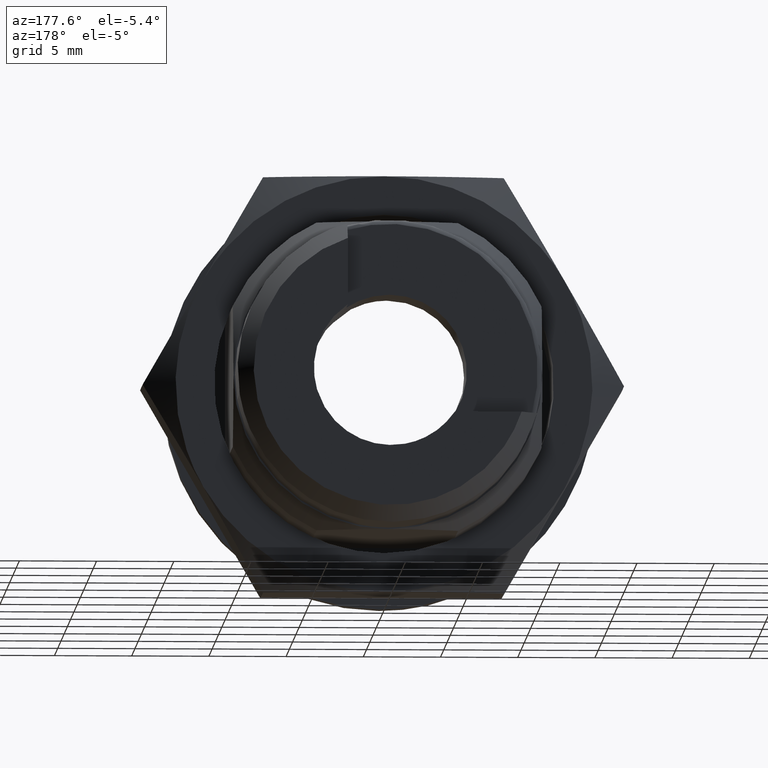
[diagram: clean part render]
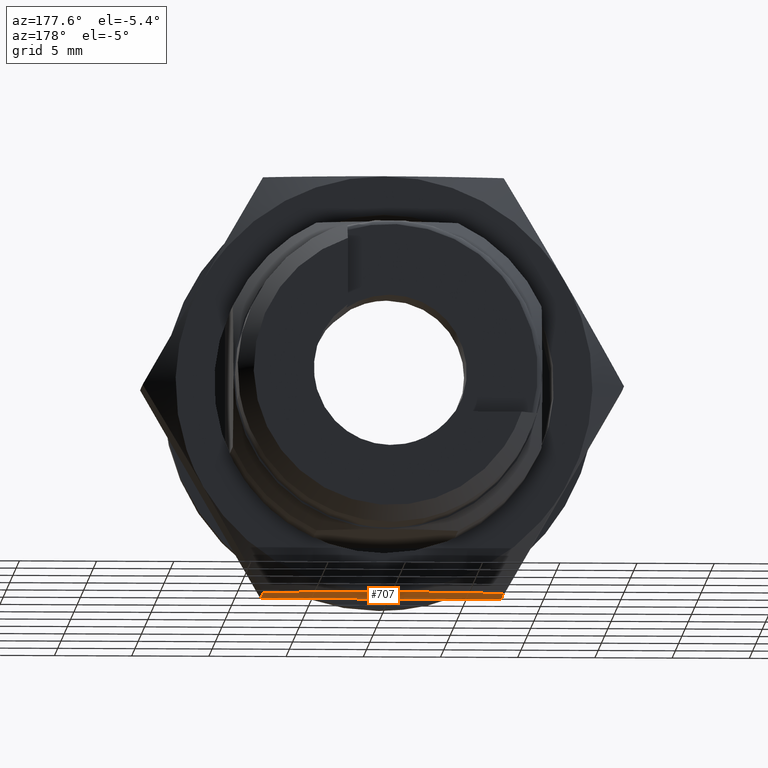
[diagram: same view with one face highlighted and labeled with its STEP entity id]
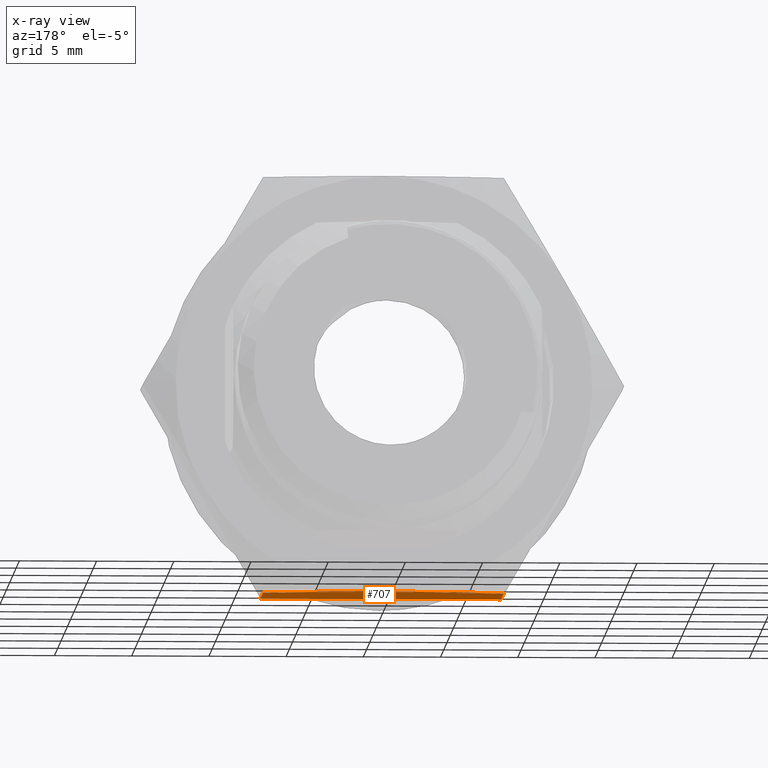
[diagram: x-ray of the same camera — body ghosted, the highlighted face saturated]
A machine part, auxiliary view. The second image highlights one B-rep face of the part: STEP entity #707.
The next image is the same camera in x-ray: the body ghosted, the highlighted face saturated — about 0% of this face is hidden behind the body in this view.
In plain terms, the highlighted face is a freeform B-spline surface patch.
Its self-contained STEP definition (entity closure, byte-faithful):
#364=CARTESIAN_POINT('',(7.000000332482160,0.0,-13.500000641215440));
#365=VERTEX_POINT('',#364);
#379=CARTESIAN_POINT('',(6.000000284984660,-7.794229004265340,-13.500000641216220));
#380=VERTEX_POINT('',#379);
#394=CARTESIAN_POINT('',(7.000000332482160,0.0,-13.500000641215440));
#395=CARTESIAN_POINT('',(7.000000332389047,-0.000583297459823,-13.500000641215600));
#396=CARTESIAN_POINT('',(7.000000314380705,-0.001166594500195,-13.500000641215600));
#397=CARTESIAN_POINT('',(6.999959780945603,-0.654239656948959,-13.500000641215600));
#398=CARTESIAN_POINT('',(6.977154559102181,-1.306198639828669,-13.500000641215600));
#399=CARTESIAN_POINT('',(6.887625316711893,-2.609092593654626,-13.500000641215600));
#400=CARTESIAN_POINT('',(6.820928549973395,-3.260028200051427,-13.500000641215600));
#401=CARTESIAN_POINT('',(6.647614333566984,-4.560968621090276,-13.500000641215600));
#402=CARTESIAN_POINT('',(6.541005635129090,-5.211118558278104,-13.500000641215600));
#403=CARTESIAN_POINT('',(6.293338654547926,-6.510028771840510,-13.500000641215610));
#404=CARTESIAN_POINT('',(6.153221032773357,-7.154239035574240,-13.500000641215600));
#405=CARTESIAN_POINT('',(6.000000284984660,-7.794229004265340,-13.500000641216220));
#406=B_SPLINE_CURVE_WITH_KNOTS('',3,(#394,#395,#396,#397,#398,#399,#400,#401,#402,#403,#404,#405),.UNSPECIFIED.,.F.,.U.,(4,2,2,2,2,4),(0.0,0.000111744399433,0.125111744399433,0.250111744399433,0.375111744399432,0.500111744399432),.UNSPECIFIED.);
#407=EDGE_CURVE('',#365,#380,#406,.T.);
#441=CARTESIAN_POINT('',(6.000000284984660,7.794229004266430,-13.500000641215600));
#442=VERTEX_POINT('',#441);
#443=CARTESIAN_POINT('',(6.000000284984666,7.794229004266431,-13.500000641215600));
#444=CARTESIAN_POINT('',(6.152127191571151,7.158807916792094,-13.500000641215600));
#445=CARTESIAN_POINT('',(6.291433974877149,6.518837123705652,-13.500000641215600));
#446=CARTESIAN_POINT('',(6.476427827160421,5.550375578051428,-13.500000641215610));
#447=CARTESIAN_POINT('',(6.534090343068354,5.226134765746765,-13.500000641215600));
#448=CARTESIAN_POINT('',(6.640550617042766,4.574507146546061,-13.500000641215600));
#449=CARTESIAN_POINT('',(6.689391348488406,4.246681890773907,-13.500000641215600));
#450=CARTESIAN_POINT('',(6.820463076719008,3.264889753608043,-13.500000641215600));
#451=CARTESIAN_POINT('',(6.887513344230073,2.610835697636565,-13.500000641215600));
#452=CARTESIAN_POINT('',(6.977274149918537,1.304344709516583,-13.500000641215600));
#453=CARTESIAN_POINT('',(7.000000124768657,0.651907417446189,-13.500000641215600));
#454=CARTESIAN_POINT('',(7.000000332482160,0.0,-13.500000641215440));
#455=B_SPLINE_CURVE_WITH_KNOTS('',3,(#443,#444,#445,#446,#447,#448,#449,#450,#451,#452,#453,#454),.UNSPECIFIED.,.F.,.U.,(4,2,2,2,2,4),(0.500111744399233,0.625111744399233,0.687611744399233,0.750111744399233,0.875111744399233,1.0),.UNSPECIFIED.);
#456=EDGE_CURVE('',#442,#365,#455,.T.);
#622=CARTESIAN_POINT('',(2.000000094994905,7.794229004265990,-13.500000641215600));
#623=VERTEX_POINT('',#622);
#629=CARTESIAN_POINT('',(2.000000094994905,-7.794229004265699,-13.500000641215600));
#630=VERTEX_POINT('',#629);
#631=CARTESIAN_POINT('',(2.000000094994905,7.794229004265990,-13.500000641215600));
#632=CARTESIAN_POINT('',(2.000000094994905,-7.794229004265699,-13.500000641215600));
#633=QUASI_UNIFORM_CURVE('',1,(#631,#632),.UNSPECIFIED.,.F.,.U.);
#634=EDGE_CURVE('',#623,#630,#633,.T.);
#675=CARTESIAN_POINT('',(6.000000284984660,-7.794229004265340,-13.500000641216220));
#676=CARTESIAN_POINT('',(2.000000094994905,-7.794229004265699,-13.500000641215600));
#677=QUASI_UNIFORM_CURVE('',1,(#675,#676),.UNSPECIFIED.,.F.,.U.);
#678=EDGE_CURVE('',#380,#630,#677,.T.);
#691=CARTESIAN_POINT('',(7.249750522399378,-8.572872597911712,-13.500000641215600));
#692=CARTESIAN_POINT('',(1.750249949781173,-8.572872597911712,-13.500000641215600));
#693=CARTESIAN_POINT('',(7.249750522399378,8.572872876655795,-13.500000641215600));
#694=CARTESIAN_POINT('',(1.750249949781173,8.572872876655795,-13.500000641215600));
#695=B_SPLINE_SURFACE_WITH_KNOTS('',1,1,((#691,#693),(#692,#694)),.UNSPECIFIED.,.F.,.F.,.U.,(2,2),(2,2),(0.0,5.499500572618205),(0.0,17.145745474567509),.UNSPECIFIED.);
#696=CARTESIAN_POINT('',(6.000000284984660,7.794229004266430,-13.500000641215600));
#697=CARTESIAN_POINT('',(2.000000094994905,7.794229004265990,-13.500000641215600));
#698=QUASI_UNIFORM_CURVE('',1,(#696,#697),.UNSPECIFIED.,.F.,.U.);
#699=EDGE_CURVE('',#442,#623,#698,.T.);
#700=ORIENTED_EDGE('',*,*,#699,.F.);
#701=ORIENTED_EDGE('',*,*,#456,.T.);
#702=ORIENTED_EDGE('',*,*,#407,.T.);
#703=ORIENTED_EDGE('',*,*,#678,.T.);
#704=ORIENTED_EDGE('',*,*,#634,.F.);
#705=EDGE_LOOP('',(#700,#701,#702,#703,#704));
#706=FACE_OUTER_BOUND('',#705,.T.);
#707=ADVANCED_FACE('',(#706),#695,.T.);